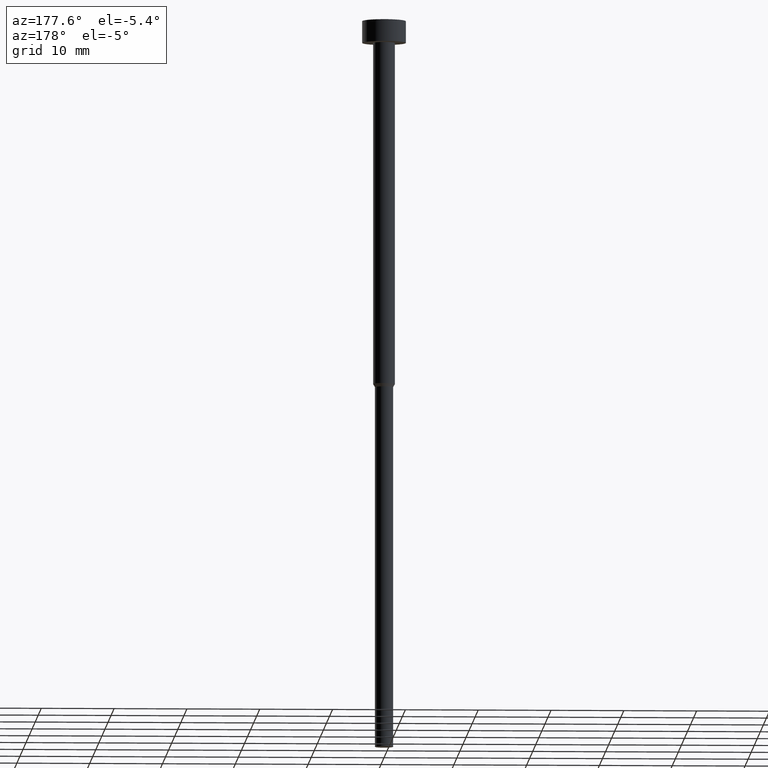
[diagram: clean part render]
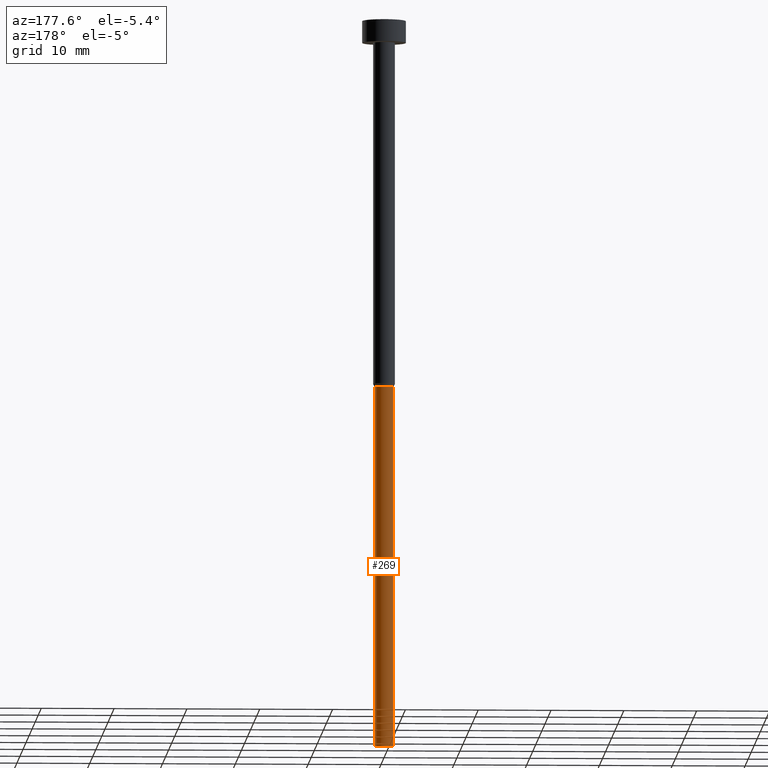
[diagram: same view with one face highlighted and labeled with its STEP entity id]
A machine part, auxiliary view. The second image highlights one B-rep face of the part: STEP entity #269.
In plain terms, the highlighted cylindrical surface (edge-blend (fillet) strip) has radius 1.25 mm, axis along (-0, -0, 1).
Its self-contained STEP definition (entity closure, byte-faithful):
#10 = DIRECTION ( 'NONE',  ( -0.000000000000000000, -0.000000000000000000, 1.000000000000000000 ) ) ;
#17 = DIRECTION ( 'NONE',  ( 1.000000000000000000, 0.000000000000000000, 0.000000000000000000 ) ) ;
#43 = EDGE_CURVE ( 'NONE', #231, #256, #78, .T. ) ;
#52 = EDGE_CURVE ( 'NONE', #231, #176, #81, .T. ) ;
#54 = CARTESIAN_POINT ( 'NONE',  ( -1.250000000000000000, 1.530808498934191571E-16, -100.0000000000000000 ) ) ;
#59 = CYLINDRICAL_SURFACE ( 'NONE', #350, 1.250000000000000000 ) ;
#68 = VERTEX_POINT ( 'NONE', #313 ) ;
#77 = CARTESIAN_POINT ( 'NONE',  ( 1.250000000000000000, 0.000000000000000000, -100.0000000000000000 ) ) ;
#78 = CIRCLE ( 'NONE', #147, 1.250000000000000000 ) ;
#81 = LINE ( 'NONE', #272, #314 ) ;
#83 = CARTESIAN_POINT ( 'NONE',  ( -1.250000000000000000, 1.530808498934191571E-16, 0.000000000000000000 ) ) ;
#105 = CARTESIAN_POINT ( 'NONE',  ( 0.000000000000000000, 0.000000000000000000, -100.0000000000000000 ) ) ;
#111 = CARTESIAN_POINT ( 'NONE',  ( 1.250000000000000000, 0.000000000000000000, -50.43301270189222407 ) ) ;
#122 = DIRECTION ( 'NONE',  ( -0.000000000000000000, -0.000000000000000000, 1.000000000000000000 ) ) ;
#130 = ORIENTED_EDGE ( 'NONE', *, *, #43, .T. ) ;
#147 = AXIS2_PLACEMENT_3D ( 'NONE', #105, #219, #330 ) ;
#168 = CIRCLE ( 'NONE', #296, 1.250000000000000000 ) ;
#176 = VERTEX_POINT ( 'NONE', #111 ) ;
#195 = VECTOR ( 'NONE', #10, 1000.000000000000000 ) ;
#196 = DIRECTION ( 'NONE',  ( -0.000000000000000000, -0.000000000000000000, 1.000000000000000000 ) ) ;
#202 = DIRECTION ( 'NONE',  ( -0.000000000000000000, -0.000000000000000000, 1.000000000000000000 ) ) ;
#203 = ORIENTED_EDGE ( 'NONE', *, *, #52, .F. ) ;
#210 = EDGE_LOOP ( 'NONE', ( #130, #284, #316, #203 ) ) ;
#217 = LINE ( 'NONE', #83, #195 ) ;
#219 = DIRECTION ( 'NONE',  ( -0.000000000000000000, -0.000000000000000000, 1.000000000000000000 ) ) ;
#231 = VERTEX_POINT ( 'NONE', #77 ) ;
#256 = VERTEX_POINT ( 'NONE', #54 ) ;
#269 = ADVANCED_FACE ( 'NONE', ( #308 ), #59, .T. ) ;
#272 = CARTESIAN_POINT ( 'NONE',  ( 1.250000000000000000, 0.000000000000000000, 0.000000000000000000 ) ) ;
#284 = ORIENTED_EDGE ( 'NONE', *, *, #297, .T. ) ;
#285 = EDGE_CURVE ( 'NONE', #176, #68, #168, .T. ) ;
#287 = DIRECTION ( 'NONE',  ( 1.000000000000000000, 0.000000000000000000, 0.000000000000000000 ) ) ;
#291 = CARTESIAN_POINT ( 'NONE',  ( 0.000000000000000000, 0.000000000000000000, 0.000000000000000000 ) ) ;
#296 = AXIS2_PLACEMENT_3D ( 'NONE', #343, #202, #287 ) ;
#297 = EDGE_CURVE ( 'NONE', #256, #68, #217, .T. ) ;
#308 = FACE_OUTER_BOUND ( 'NONE', #210, .T. ) ;
#313 = CARTESIAN_POINT ( 'NONE',  ( -1.250000000000000000, 1.530808498934191571E-16, -50.43301270189222407 ) ) ;
#314 = VECTOR ( 'NONE', #196, 1000.000000000000000 ) ;
#316 = ORIENTED_EDGE ( 'NONE', *, *, #285, .F. ) ;
#330 = DIRECTION ( 'NONE',  ( 1.000000000000000000, 0.000000000000000000, 0.000000000000000000 ) ) ;
#343 = CARTESIAN_POINT ( 'NONE',  ( 0.000000000000000000, 0.000000000000000000, -50.43301270189222407 ) ) ;
#350 = AXIS2_PLACEMENT_3D ( 'NONE', #291, #122, #17 ) ;